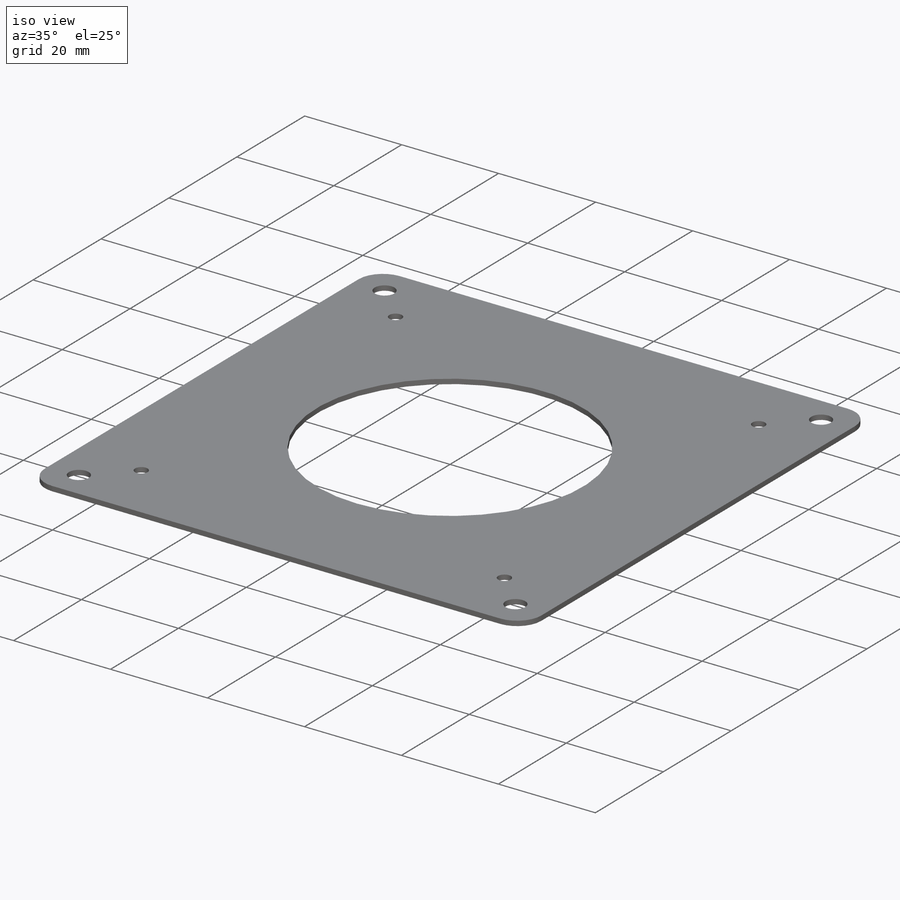
[diagram: iso view]
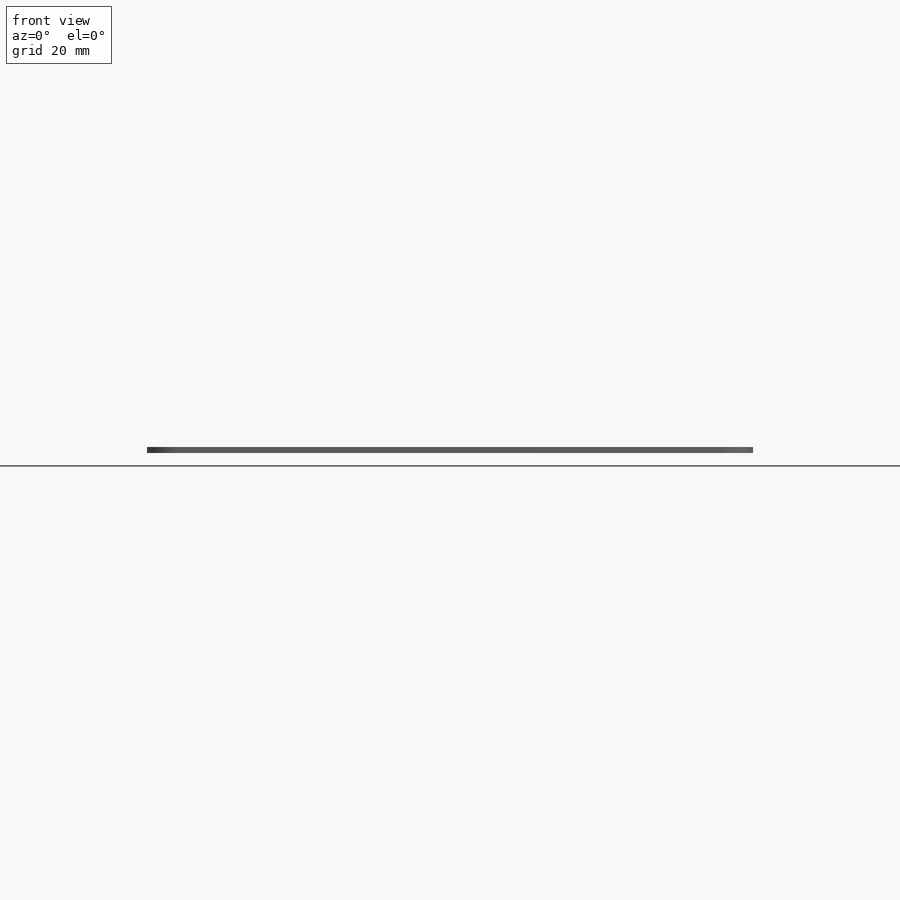
[diagram: front view]
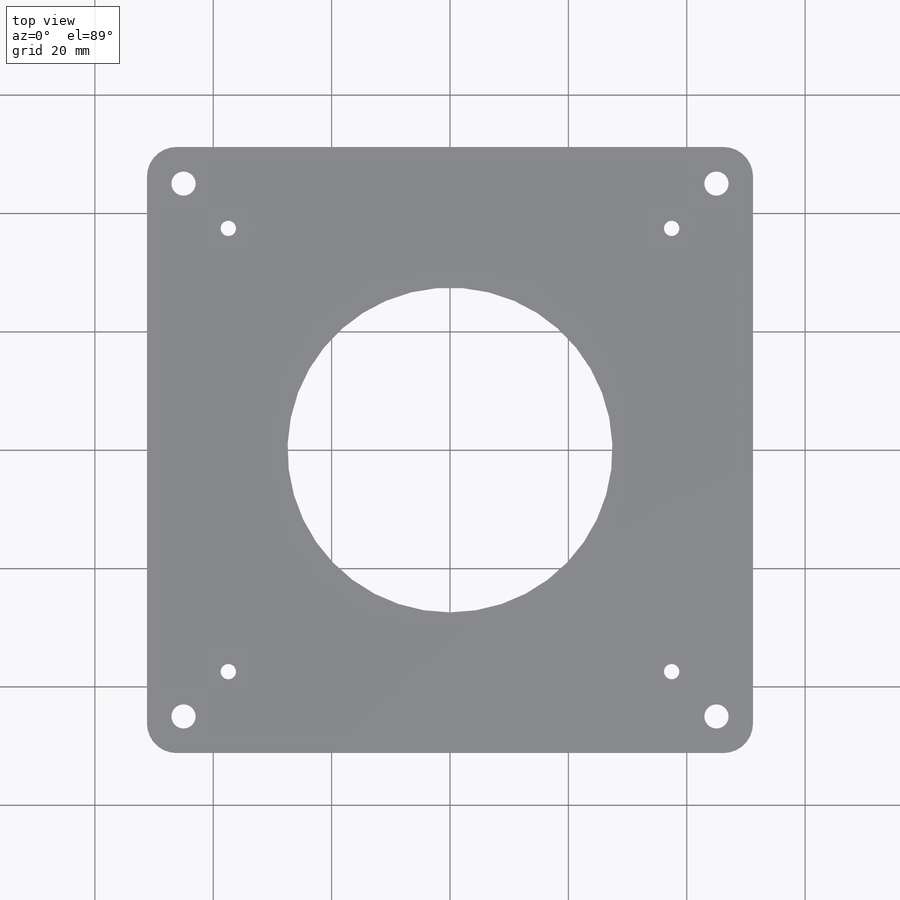
[diagram: top view]
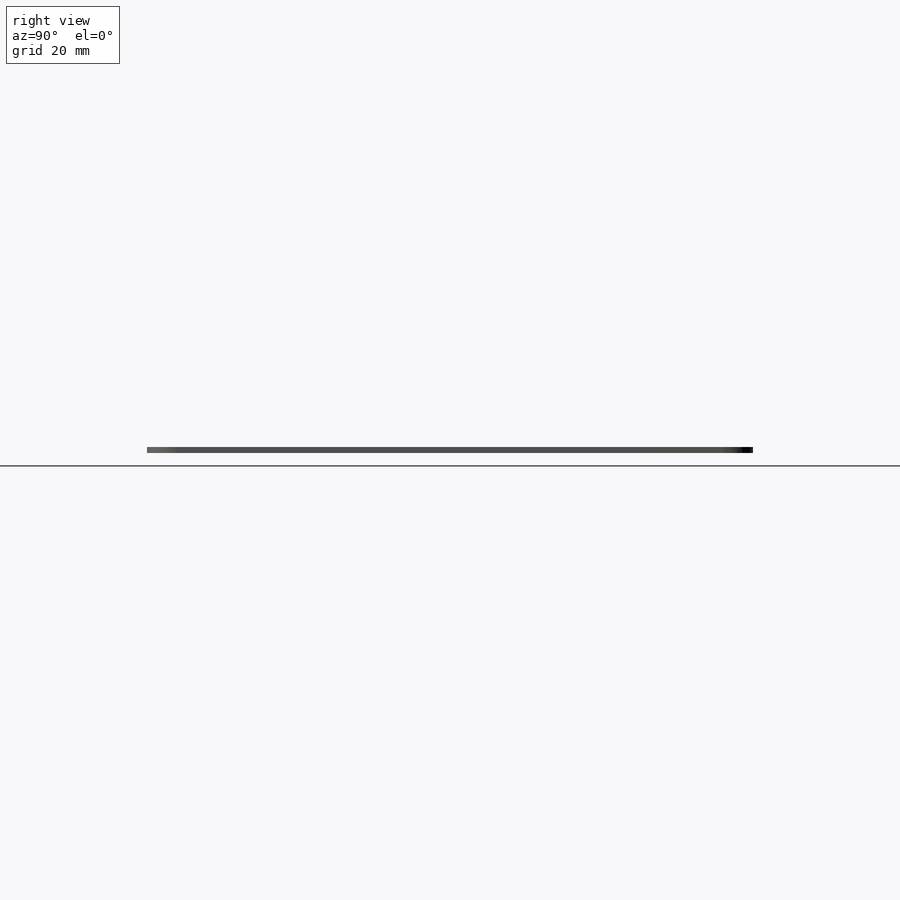
[diagram: right view]
SOLIDWORKS PART (.sldprt)
format: sldprt  version: not decoded by parser v0  size: 243,712 bytes
history: native  units: mm
features: sketch x14, sheet_metal_op x5, cut_extrude x2, material x1, pattern_circular x1 + 4 further entries (+12 scaffold rows collapsed; 4 parser-record rows omitted)
feature tree (43):
  scaffold x12  (default folders/planes/origin — collapsed)
  material  "Material <not specified>"
  sketch  "Sketch1"  dims[D3=5.0mm D1=102.4mm D2=102.4mm]
  sketch  "Sketch7"  dims[D1=1.0mm D2=0.5 D3=0.0mm D6=500.0mm]
  sheet_metal_op  "Base-Flange1"
  sketch  "Sketch6"  dims[D1=54.9mm]
  cut_extrude  "Cut-Extrude1"  Depth=10mm
  sketch  "Sketch8"  dims[c1.D5=4.1mm c1.D6=2.6mm c1.D1=6.18mm c1.D2=6.18mm c1.D3=14.83mm c1.D4=~16.328277mm c2.D3=13.75mm c2.D4=13.75mm]
  cut_extrude  "Cut-Extrude3"  Depth=10mm
  pattern_circular  "CirPattern2"  Count=4 Angle=360deg
  sketch  "Bend-Lines1"
  sketch  "Bounding-Box1"
  sheet_metal_op  "Sheet-Metal(1)"
  "Flat-Pattern(1)"
  sketch  "Bend-Lines2"
  sketch  "Bounding-Box2"
  parser-record x4  (decoder bookkeeping rows leaked as tree rows — omitted from the tree; the rows remain in map.json)
  sheet_metal_op  "Sheet-Metal(6)"
  "Flat-Pattern(1)"
  sketch  "Bend-Lines2"
  sketch  "Bounding-Box2"
  sheet_metal_op  "Sheet-Metal(11)"
  "Flat-Pattern(1)"
  sketch  "Bend-Lines2"
  sketch  "Bounding-Box2"
  sheet_metal_op  "Sheet-Metal(12)"
  "Flat-Pattern(1)"
  sketch  "Bend-Lines2"
  sketch  "Bounding-Box2"
decode coverage: 7 of 22 modeling features carry decoded parameters; 4 rows unclassified (native names shown)
note: ~ marks probable driven/reference dimensions
note: suppression state not decoded; provenance and decode notes live in map.json
